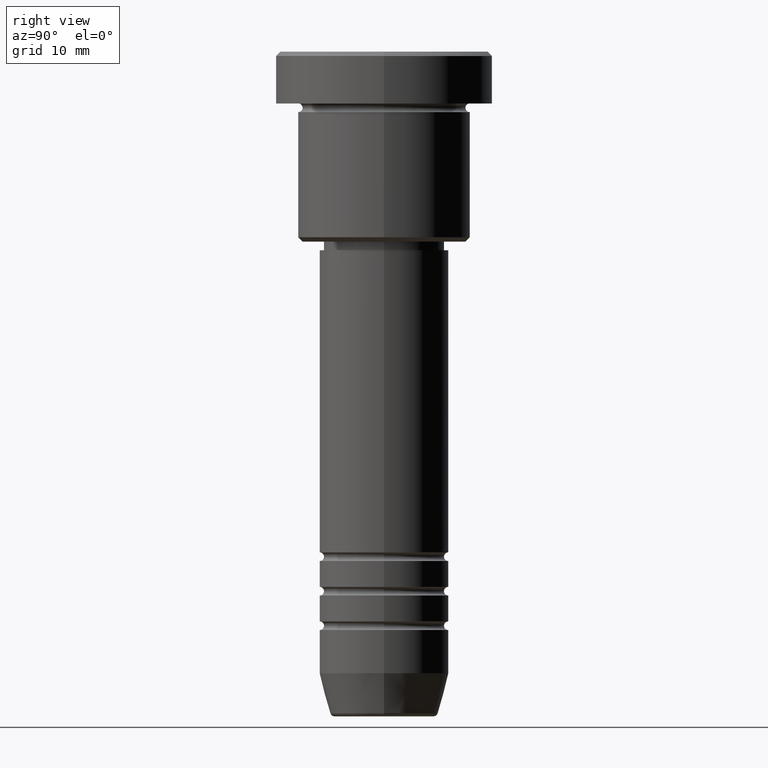
[diagram: clean part render]
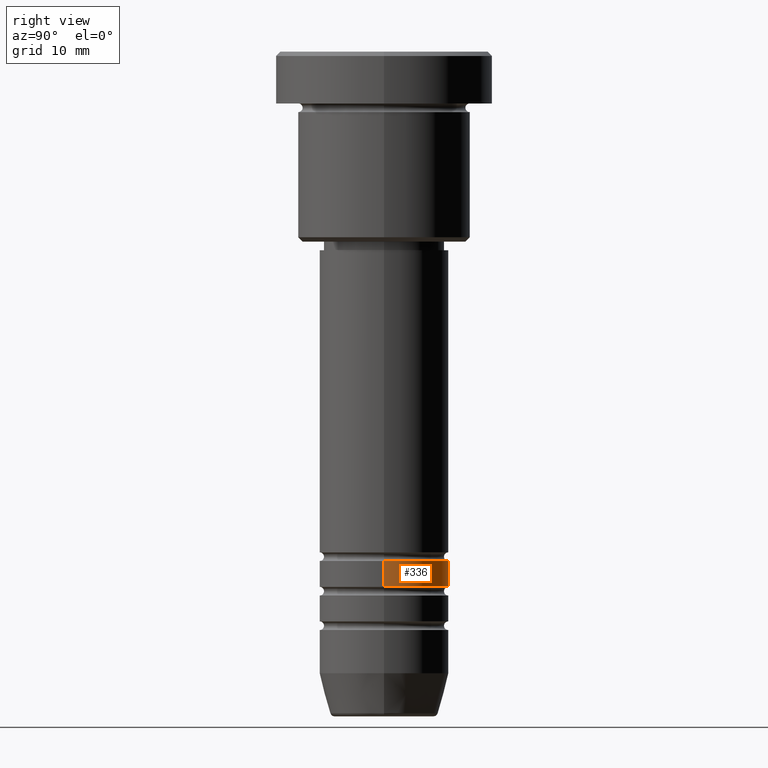
[diagram: same view with one face highlighted and labeled with its STEP entity id]
A machine part, right view. The second image highlights one B-rep face of the part: STEP entity #336.
In plain terms, the highlighted cylindrical surface (partial cylindrical patch) has radius 7.5 mm, axis along (-0, -0, 1).
Its self-contained STEP definition (entity closure, byte-faithful):
#43 = CARTESIAN_POINT ( 'NONE',  ( -7.500000000000003553, 9.184850993605151889E-16, -61.99999999999991473 ) ) ;
#45 = CARTESIAN_POINT ( 'NONE',  ( 7.500000000000002665, 0.000000000000000000, -61.99999999999991473 ) ) ;
#60 = DIRECTION ( 'NONE',  ( -0.000000000000000000, -0.000000000000000000, 1.000000000000000000 ) ) ;
#63 = VERTEX_POINT ( 'NONE', #799 ) ;
#84 = VERTEX_POINT ( 'NONE', #870 ) ;
#88 = CIRCLE ( 'NONE', #233, 7.500000000000002665 ) ;
#98 = ORIENTED_EDGE ( 'NONE', *, *, #545, .T. ) ;
#123 = EDGE_LOOP ( 'NONE', ( #560, #98, #1152, #726 ) ) ;
#149 = CARTESIAN_POINT ( 'NONE',  ( 0.000000000000000000, 0.000000000000000000, -58.99999999999990052 ) ) ;
#233 = AXIS2_PLACEMENT_3D ( 'NONE', #840, #465, #837 ) ;
#296 = CYLINDRICAL_SURFACE ( 'NONE', #1012, 7.500000000000001776 ) ;
#319 = LINE ( 'NONE', #875, #977 ) ;
#323 = DIRECTION ( 'NONE',  ( -0.000000000000000000, -0.000000000000000000, 1.000000000000000000 ) ) ;
#336 = ADVANCED_FACE ( 'NONE', ( #660 ), #296, .T. ) ;
#351 = AXIS2_PLACEMENT_3D ( 'NONE', #149, #323, #1127 ) ;
#356 = VERTEX_POINT ( 'NONE', #43 ) ;
#366 = CIRCLE ( 'NONE', #351, 7.500000000000000000 ) ;
#385 = VECTOR ( 'NONE', #60, 1000.000000000000000 ) ;
#465 = DIRECTION ( 'NONE',  ( -0.000000000000000000, -0.000000000000000000, 1.000000000000000000 ) ) ;
#480 = EDGE_CURVE ( 'NONE', #950, #356, #88, .T. ) ;
#530 = CARTESIAN_POINT ( 'NONE',  ( 7.500000000000001776, 0.000000000000000000, 0.000000000000000000 ) ) ;
#545 = EDGE_CURVE ( 'NONE', #356, #63, #319, .T. ) ;
#560 = ORIENTED_EDGE ( 'NONE', *, *, #480, .T. ) ;
#660 = FACE_OUTER_BOUND ( 'NONE', #123, .T. ) ;
#726 = ORIENTED_EDGE ( 'NONE', *, *, #1114, .F. ) ;
#767 = DIRECTION ( 'NONE',  ( -0.000000000000000000, -0.000000000000000000, 1.000000000000000000 ) ) ;
#799 = CARTESIAN_POINT ( 'NONE',  ( -7.500000000000000000, 9.184850993605147944E-16, -58.99999999999990052 ) ) ;
#837 = DIRECTION ( 'NONE',  ( 1.000000000000000000, 0.000000000000000000, 0.000000000000000000 ) ) ;
#840 = CARTESIAN_POINT ( 'NONE',  ( 0.000000000000000000, 0.000000000000000000, -61.99999999999991473 ) ) ;
#870 = CARTESIAN_POINT ( 'NONE',  ( 7.500000000000000000, 0.000000000000000000, -58.99999999999990052 ) ) ;
#875 = CARTESIAN_POINT ( 'NONE',  ( -7.500000000000001776, 9.184850993605149917E-16, 0.000000000000000000 ) ) ;
#950 = VERTEX_POINT ( 'NONE', #45 ) ;
#953 = DIRECTION ( 'NONE',  ( -0.000000000000000000, -0.000000000000000000, 1.000000000000000000 ) ) ;
#977 = VECTOR ( 'NONE', #953, 1000.000000000000000 ) ;
#988 = LINE ( 'NONE', #530, #385 ) ;
#1012 = AXIS2_PLACEMENT_3D ( 'NONE', #1025, #767, #1132 ) ;
#1020 = EDGE_CURVE ( 'NONE', #84, #63, #366, .T. ) ;
#1025 = CARTESIAN_POINT ( 'NONE',  ( 0.000000000000000000, 0.000000000000000000, 0.000000000000000000 ) ) ;
#1114 = EDGE_CURVE ( 'NONE', #950, #84, #988, .T. ) ;
#1127 = DIRECTION ( 'NONE',  ( 1.000000000000000000, 0.000000000000000000, 0.000000000000000000 ) ) ;
#1132 = DIRECTION ( 'NONE',  ( 1.000000000000000000, 0.000000000000000000, 0.000000000000000000 ) ) ;
#1152 = ORIENTED_EDGE ( 'NONE', *, *, #1020, .F. ) ;